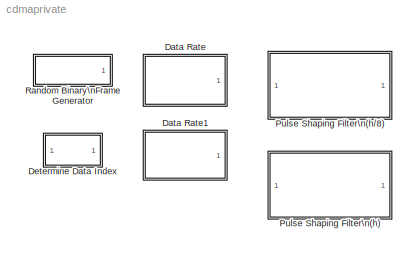
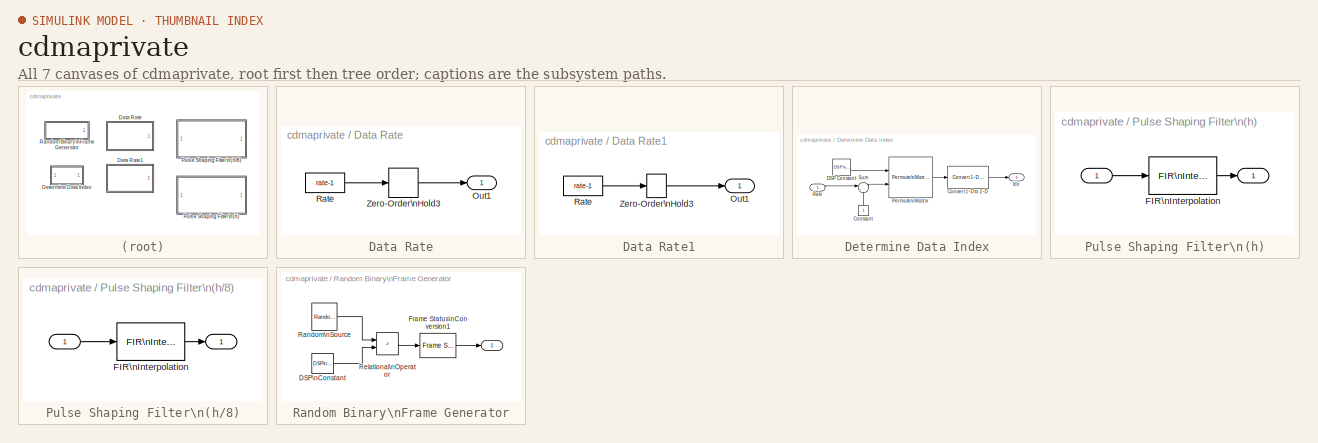
[diagram: thumbnail index - all 7 canvases of the model, root first then tree order]
MODEL cdmaprivate
KIND library
BLOCK [SubSystem] Data Rate
  MaskDescription = Select the Base Station Transmitter Data Rate.
  MaskDisplay = disp('Base Station \\nTransmitter\\nData Rate')
  MaskEnableString = on
  MaskIconFrame = on
  MaskIconOpaque = on
  MaskIconRotate = none
  MaskIconUnits = autoscale
  MaskPromptString = Data Rate
  MaskStyleString = popup(Full|Half|Quarter|One-Eighth)
  MaskToolTipString = on
  MaskTunableValueString = on
  MaskType = Base Station Transmitter Data Rate
  MaskValueString = Full
  MaskVariables = rate=@1;
  MaskVisibilityString = on
  Ports = [0, 1]
  RTWFcnNameOpts = Auto
  RTWFileNameOpts = Auto
  RTWSystemCode = Auto
  ShowPortLabels = on
  TreatAsAtomicUnit = off
BLOCK [Outport] Data Rate/Out1
  InitialOutput = 0
  OutputWhenDisabled = held
  Port = 1
BLOCK [Constant] Data Rate/Rate
  Value = rate-1
  VectorParams1D = on
BLOCK [ZeroOrderHold] Data Rate/Zero-Order\nHold3
  SampleTime = 1/50
BLOCK [SubSystem] Data Rate1
  MaskDescription = Select the Mobile Station Transmitter Data Rate.
  MaskDisplay = disp('Mobile Station \\nTransmitter \\nData Rate')
  MaskEnableString = on
  MaskIconFrame = on
  MaskIconOpaque = on
  MaskIconRotate = none
  MaskIconUnits = autoscale
  MaskPromptString = Data Rate
  MaskStyleString = popup(Full|Half|Quarter|One-Eighth)
  MaskToolTipString = on
  MaskTunableValueString = on
  MaskType = Mobile Station Transmitter Data Rate
  MaskValueString = Full
  MaskVariables = rate=@1;
  MaskVisibilityString = on
  Ports = [0, 1]
  RTWFcnNameOpts = Auto
  RTWFileNameOpts = Auto
  RTWSystemCode = Auto
  ShowPortLabels = on
  TreatAsAtomicUnit = off
BLOCK [Outport] Data Rate1/Out1
  InitialOutput = 0
  OutputWhenDisabled = held
  Port = 1
BLOCK [Constant] Data Rate1/Rate
  Value = rate-1
  VectorParams1D = on
BLOCK [ZeroOrderHold] Data Rate1/Zero-Order\nHold3
  SampleTime = 1/50
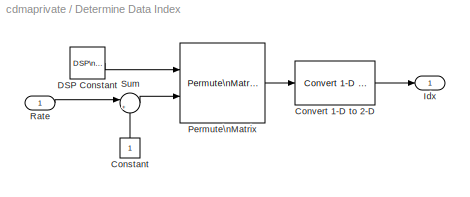
BLOCK [SubSystem] Determine Data Index
  MaskDescription = Deterime index of valid data in the frame based upon rate set and rate input.
  MaskEnableString = on
  MaskIconFrame = on
  MaskIconOpaque = on
  MaskIconRotate = none
  MaskIconUnits = autoscale
  MaskInitialization = if(rateSet==1)\n% --- Rate Set 1\n   R1F = buffer(1:172,268);\n   R1H = buffer(1:80,268);\n   R1Q = buffer(1:40,268);\n   R1E = buffer(1:16,268);\n   idxMat = [R1F R1H R1Q R1E];\nelse\n   % --- Rate Set 2\n   R2F = [1:268]';\n   R2H = buffer(1:126,268);\n   R2Q = buffer(1:56,268);\n   R2E = buffer(1:22,268);\n   idxMat = [R2F R2H R2Q R2E];\nend;\n
  MaskPromptString = Rate set:
  MaskStyleString = popup(Rate Set I|Rate Set II)
  MaskToolTipString = on
  MaskTunableValueString = on
  MaskType = Determine Data Index
  MaskValueString = Rate Set I
  MaskVariables = rateSet=@1;
  MaskVisibilityString = on
  Ports = [1, 1]
  RTWFcnNameOpts = Auto
  RTWFileNameOpts = Auto
  RTWSystemCode = Auto
  ShowPortLabels = on
  TreatAsAtomicUnit = off
BLOCK [Constant] Determine Data Index/Constant
  Value = 1
  VectorParams1D = on
BLOCK [Reference] Determine Data Index/Convert 1-D to 2-D  REF=dspsigattribs/Convert 1-D to 2-D
  M = 268
  N = 1
  Ports = [1, 1]
  SourceBlock = dspsigattribs/Convert 1-D to 2-D
  SourceType = Convert 1-D to 2-D
  frameBasedOut = off
BLOCK [Reference] Determine Data Index/DSP Constant  REF=dspsrcs3/DSP\nConstant
  FramebasedOutput = off
  InterpretAs1D = on
  Ports = [0, 1]
  SampleMode = Discrete
  SourceBlock = dspsrcs3/DSP\nConstant
  SourceType = DSP Constant
  Ts = -1
  Value = idxMat
BLOCK [Outport] Determine Data Index/Idx
  InitialOutput = []
  OutputWhenDisabled = held
  Port = 1
BLOCK [Reference] Determine Data Index/Permute\nMatrix  REF=dspmtrx3/Permute\nMatrix
  Ports = [2, 1]
  SourceBlock = dspmtrx3/Permute\nMatrix
  SourceType = Permute Matrix
  checkDims = off
  errmode = Clip Index
  mode = Columns
BLOCK [Inport] Determine Data Index/Rate
  Interpolate = on
  Port = 1
BLOCK [Sum] Determine Data Index/Sum
  IconShape = round
  Inputs = |++
  Ports = [2, 1]
  SaturateOnIntegerOverflow = on
BLOCK [SubSystem] Pulse Shaping Filter\n(h)
  MaskDescription = The length of the FIR filter is the duration of 12 PN sequence chips. The coefficient spacing and the sample time of this filter is one-eighth of the PN sequence chip duration, resulting in a total of 96 coefficients. The filter introduces a delay of 48 samples.
  MaskDisplay = plot( 1:prod( size( h)), h);
  MaskEnableString = on
  MaskIconFrame = on
  MaskIconOpaque = on
  MaskIconRotate = none
  MaskIconUnits = autoscale
  MaskInitialization = load txfiltx8.mat;\nh = (TxFiltCoefx8*N);
  MaskPromptString = Interpolation factor:
  MaskStyleString = edit
  MaskToolTipString = on
  MaskTunableValueString = on
  MaskType = FIR Pulse Shaping Filter
  MaskValueString = 8
  MaskVariables = N=@1;
  MaskVisibilityString = on
  Ports = [1, 1]
  RTWFcnNameOpts = Auto
  RTWFileNameOpts = Auto
  RTWSystemCode = Auto
  ShowPortLabels = on
  TreatAsAtomicUnit = off
BLOCK [Outport] Pulse Shaping Filter\n(h)/ 
  InitialOutput = []
  OutputWhenDisabled = held
  Port = 1
BLOCK [Inport] Pulse Shaping Filter\n(h)/   
  Interpolate = on
  Port = 1
BLOCK [Reference] Pulse Shaping Filter\n(h)/FIR\nInterpolation  REF=dspmlti3/FIR\nInterpolation
  L = N
  Ports = [1, 1]
  SourceBlock = dspmlti3/FIR\nInterpolation
  SourceType = FIR Interpolation
  framing = Maintain input frame rate
  h = h
BLOCK [SubSystem] Pulse Shaping Filter\n(h//8)
  MaskDescription = The length of the FIR filter is the duration of 12 PN sequence chips. The coefficient spacing and the sample time of this filter is one-eighth of the PN sequence chip duration, resulting in a total of 96 coefficients. The filter introduces a delay of 48 samples.
  MaskDisplay = plot( 1:prod( size( h)), h);
  MaskEnableString = on
  MaskIconFrame = on
  MaskIconOpaque = on
  MaskIconRotate = none
  MaskIconUnits = autoscale
  MaskInitialization = load txfiltx8.mat;\nh = (TxFiltCoefx8*N)/8;
  MaskPromptString = Interpolation factor:
  MaskStyleString = edit
  MaskToolTipString = on
  MaskTunableValueString = on
  MaskType = FIR Pulse Shaping Filter
  MaskValueString = 8
  MaskVariables = N=@1;
  MaskVisibilityString = on
  Ports = [1, 1]
  RTWFcnNameOpts = Auto
  RTWFileNameOpts = Auto
  RTWSystemCode = Auto
  ShowPortLabels = on
  TreatAsAtomicUnit = off
BLOCK [Outport] Pulse Shaping Filter\n(h//8)/ 
  InitialOutput = []
  OutputWhenDisabled = held
  Port = 1
BLOCK [Inport] Pulse Shaping Filter\n(h//8)/   
  Interpolate = on
  Port = 1
BLOCK [Reference] Pulse Shaping Filter\n(h//8)/FIR\nInterpolation  REF=dspmlti3/FIR\nInterpolation
  L = N
  Ports = [1, 1]
  SourceBlock = dspmlti3/FIR\nInterpolation
  SourceType = FIR Interpolation
  framing = Maintain input frame rate
  h = h
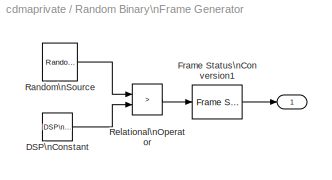
BLOCK [SubSystem] Random Binary\nFrame Generator
  MaskCallbackString = ||
  MaskDescription = Generate a random frame of binary integers. The output frame period is \n(Sample time) * (Output frame size).
  MaskDisplay = plot(0,0,100,100,[95,90,90,80,80,60,60,30,30,20,20,10,10,5],[25,25,75,75,25,25,75,75,25,25,75,75,25,25]);
  MaskEnableString = on,on,on
  MaskIconFrame = on
  MaskIconOpaque = on
  MaskIconRotate = none
  MaskIconUnits = autoscale
  MaskPromptString = Initial seed:|Sample time (sec):|Output frame size:
  MaskStyleString = edit,edit,edit
  MaskToolTipString = on,on,on
  MaskTunableValueString = on,on,on
  MaskType = Random Binary Frame Generator
  MaskValueString = 119940|1/(50*268)|268
  MaskVariableAliases = ,,
  MaskVariables = seed=@1;Ts=@2;N=@3;
  MaskVisibilityString = on,on,on
  Ports = [0, 1]
  RTWFcnNameOpts = Auto
  RTWFileNameOpts = Auto
  RTWSystemCode = Auto
  ShowPortLabels = on
  TreatAsAtomicUnit = off
BLOCK [Outport] Random Binary\nFrame Generator/ 
  InitialOutput = []
  OutputWhenDisabled = held
  Port = 1
BLOCK [Reference] Random Binary\nFrame Generator/DSP\nConstant  REF=dspsrcs3/DSP\nConstant
  FramebasedOutput = off
  InterpretAs1D = on
  Ports = [0, 1]
  SampleMode = Discrete
  SourceBlock = dspsrcs3/DSP\nConstant
  SourceType = DSP Constant
  Ts = Ts*N
  Value = 0.5
BLOCK [Reference] Random Binary\nFrame Generator/Frame Status\nConversion1  REF=dspsigattribs/Frame Status\nConversion
  Ports = [1, 1]
  SourceBlock = dspsigattribs/Frame Status\nConversion
  SourceType = Frame Status Conversion
  growRefPort = off
  outframe = Frame-based
BLOCK [Reference] Random Binary\nFrame Generator/Random\nSource  REF=dspsrcs3/Random\nSource
  Diagnostics = AllowInheritedTsInSrc
  Inherit = off
  Max = 1
  Mean = 0
  Min = 0
  OutComplex = Real
  Ports = [0, 1]
  SampFrame = N
  SampMode = Discrete
  SampTime = Ts
  Seed = seed
  SourceBlock = dspsrcs3/Random\nSource
  SourceType = Random Source
  SrcType = Uniform
  Var = 1
BLOCK [RelationalOperator] Random Binary\nFrame Generator/Relational\nOperator
  Operator = >
LINE Data Rate/Rate:1 -> Data Rate/Zero-Order\nHold3:1
LINE Data Rate/Zero-Order\nHold3:1 -> Data Rate/Out1:1
LINE Data Rate1/Rate:1 -> Data Rate1/Zero-Order\nHold3:1
LINE Data Rate1/Zero-Order\nHold3:1 -> Data Rate1/Out1:1
LINE Determine Data Index/Constant:1 -> Determine Data Index/Sum:2
LINE Determine Data Index/Convert 1-D to 2-D:1 -> Determine Data Index/Idx:1
LINE Determine Data Index/DSP Constant:1 -> Determine Data Index/Permute\nMatrix:1
LINE Determine Data Index/Permute\nMatrix:1 -> Determine Data Index/Convert 1-D to 2-D:1
LINE Determine Data Index/Rate:1 -> Determine Data Index/Sum:1
LINE Determine Data Index/Sum:1 -> Determine Data Index/Permute\nMatrix:2
LINE Pulse Shaping Filter\n(h)/   :1 -> Pulse Shaping Filter\n(h)/FIR\nInterpolation:1
LINE Pulse Shaping Filter\n(h)/FIR\nInterpolation:1 -> Pulse Shaping Filter\n(h)/ :1
LINE Pulse Shaping Filter\n(h//8)/   :1 -> Pulse Shaping Filter\n(h//8)/FIR\nInterpolation:1
LINE Pulse Shaping Filter\n(h//8)/FIR\nInterpolation:1 -> Pulse Shaping Filter\n(h//8)/ :1
LINE Random Binary\nFrame Generator/DSP\nConstant:1 -> Random Binary\nFrame Generator/Relational\nOperator:2
LINE Random Binary\nFrame Generator/Frame Status\nConversion1:1 -> Random Binary\nFrame Generator/ :1
LINE Random Binary\nFrame Generator/Random\nSource:1 -> Random Binary\nFrame Generator/Relational\nOperator:1
LINE Random Binary\nFrame Generator/Relational\nOperator:1 -> Random Binary\nFrame Generator/Frame Status\nConversion1:1
